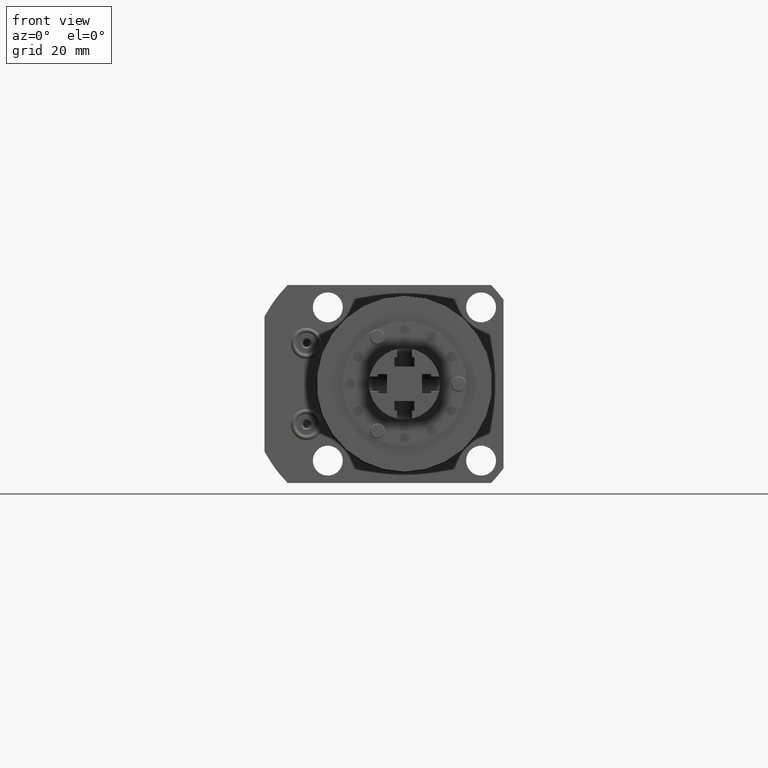
[diagram: clean part render]
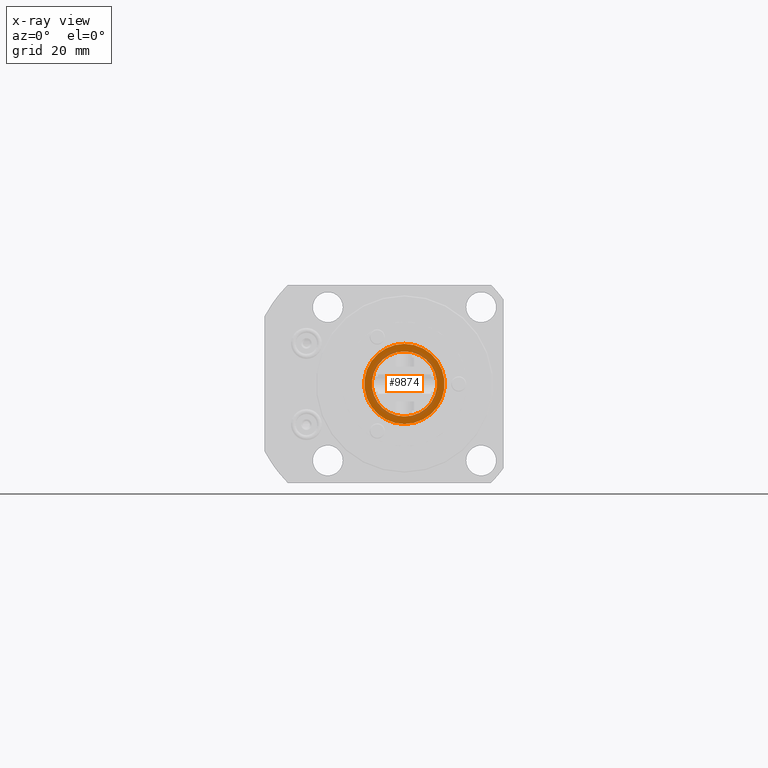
[diagram: x-ray — body ghosted, one internal face saturated and labeled with its STEP entity id]
A machine part, front view, then the same camera in x-ray: the body is ghosted and one INTERNAL B-rep face — a face not visible from any outside direction — is saturated and labeled: STEP entity #9874.
In plain terms, the highlighted planar face has unit normal (0, -1, 0).
Its self-contained STEP definition (entity closure, byte-faithful):
#9734=CARTESIAN_POINT('',(0.E0,0.E0,0.E0));
#9735=DIRECTION('',(0.E0,1.E0,0.E0));
#9736=DIRECTION('',(0.E0,0.E0,1.E0));
#9737=AXIS2_PLACEMENT_3D('',#9734,#9735,#9736);
#9742=CARTESIAN_POINT('',(0.E0,0.E0,0.E0));
#9743=DIRECTION('',(0.E0,1.E0,0.E0));
#9744=DIRECTION('',(0.E0,0.E0,-1.E0));
#9745=AXIS2_PLACEMENT_3D('',#9742,#9743,#9744);
#9780=CARTESIAN_POINT('',(0.E0,0.E0,0.E0));
#9781=DIRECTION('',(0.E0,1.E0,0.E0));
#9782=DIRECTION('',(0.E0,0.E0,1.E0));
#9783=AXIS2_PLACEMENT_3D('',#9780,#9781,#9782);
#9796=CARTESIAN_POINT('',(0.E0,0.E0,0.E0));
#9797=DIRECTION('',(0.E0,1.E0,0.E0));
#9798=DIRECTION('',(0.E0,0.E0,-1.E0));
#9799=AXIS2_PLACEMENT_3D('',#9796,#9797,#9798);
#9834=CARTESIAN_POINT('',(0.E0,0.E0,4.585E-1));
#9835=CARTESIAN_POINT('',(0.E0,0.E0,-4.585E-1));
#9836=VERTEX_POINT('',#9834);
#9837=VERTEX_POINT('',#9835);
#9838=CARTESIAN_POINT('',(0.E0,0.E0,5.65E-1));
#9839=CARTESIAN_POINT('',(0.E0,0.E0,-5.65E-1));
#9840=VERTEX_POINT('',#9838);
#9841=VERTEX_POINT('',#9839);
#9858=CARTESIAN_POINT('',(0.E0,0.E0,0.E0));
#9859=DIRECTION('',(0.E0,-1.E0,0.E0));
#9860=DIRECTION('',(-1.E0,0.E0,0.E0));
#9861=AXIS2_PLACEMENT_3D('',#9858,#9859,#9860);
#9862=PLANE('',#9861);
#9864=ORIENTED_EDGE('',*,*,#9863,.T.);
#9866=ORIENTED_EDGE('',*,*,#9865,.T.);
#9867=EDGE_LOOP('',(#9864,#9866));
#9868=FACE_OUTER_BOUND('',#9867,.F.);
#9869=ORIENTED_EDGE('',*,*,#9847,.F.);
#9871=ORIENTED_EDGE('',*,*,#9870,.F.);
#9872=EDGE_LOOP('',(#9869,#9871));
#9873=FACE_BOUND('',#9872,.F.);
#9738=CIRCLE('',#9737,4.585E-1);
#9746=CIRCLE('',#9745,4.585E-1);
#9784=CIRCLE('',#9783,5.65E-1);
#9800=CIRCLE('',#9799,5.65E-1);
#9847=EDGE_CURVE('',#9836,#9837,#9738,.T.);
#9863=EDGE_CURVE('',#9840,#9841,#9784,.T.);
#9865=EDGE_CURVE('',#9841,#9840,#9800,.T.);
#9870=EDGE_CURVE('',#9837,#9836,#9746,.T.);
#9874=ADVANCED_FACE('',(#9868,#9873),#9862,.T.);